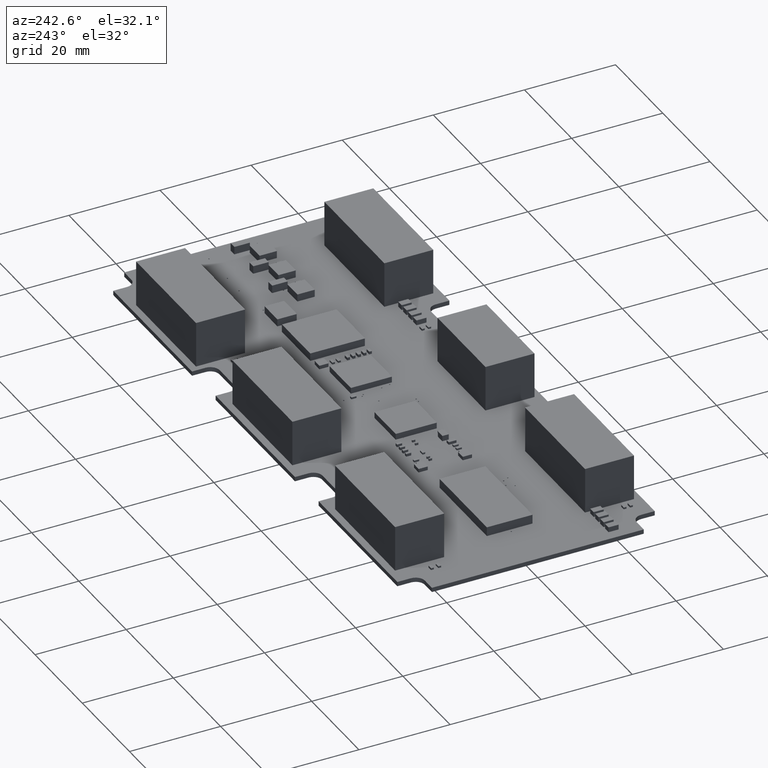
[diagram: clean part render]
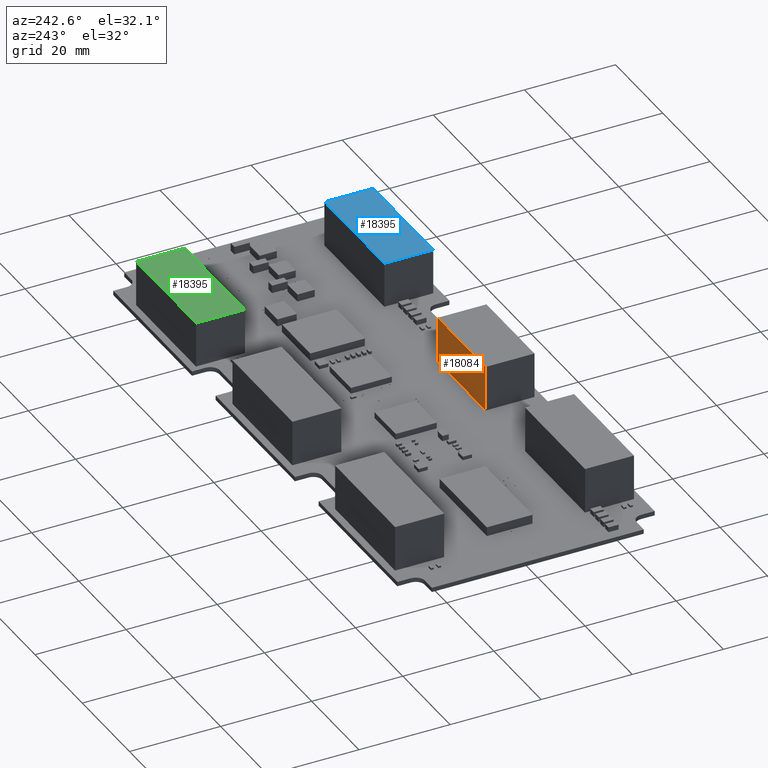
[diagram: same view with three faces highlighted in distinct colors, each labeled with its STEP entity id]
A machine part, auxiliary view with three faces highlighted in distinct colors.
Their STEP definitions:

[orange] entity #18084 — the highlighted planar face has unit normal (0, 1, 0).
#18059 = VERTEX_POINT('',#18060);
#18060 = CARTESIAN_POINT('',(-10.159492,5.36949142,10.00000032));
#18066 = EDGE_CURVE('',#18067,#18059,#18069,.T.);
#18067 = VERTEX_POINT('',#18068);
#18068 = CARTESIAN_POINT('',(-10.159492,5.36949142,0.E+000));
#18069 = LINE('',#18070,#18071);
#18070 = CARTESIAN_POINT('',(-10.159492,5.36949142,0.E+000));
#18071 = VECTOR('',#18072,1.);
#18072 = DIRECTION('',(0.E+000,0.E+000,1.));
#18084 = ADVANCED_FACE('',(#18085),#18110,.T.);
#18085 = FACE_BOUND('',#18086,.T.);
#18086 = EDGE_LOOP('',(#18087,#18088,#18096,#18104));
#18087 = ORIENTED_EDGE('',*,*,#18066,.T.);
#18088 = ORIENTED_EDGE('',*,*,#18089,.T.);
#18089 = EDGE_CURVE('',#18059,#18090,#18092,.T.);
#18090 = VERTEX_POINT('',#18091);
#18091 = CARTESIAN_POINT('',(10.159492,5.36949142,10.00000032));
#18092 = LINE('',#18093,#18094);
#18093 = CARTESIAN_POINT('',(-10.159492,5.36949142,10.00000032));
#18094 = VECTOR('',#18095,1.);
#18095 = DIRECTION('',(1.,0.E+000,0.E+000));
#18096 = ORIENTED_EDGE('',*,*,#18097,.F.);
#18097 = EDGE_CURVE('',#18098,#18090,#18100,.T.);
#18098 = VERTEX_POINT('',#18099);
#18099 = CARTESIAN_POINT('',(10.159492,5.36949142,0.E+000));
#18100 = LINE('',#18101,#18102);
#18101 = CARTESIAN_POINT('',(10.159492,5.36949142,0.E+000));
#18102 = VECTOR('',#18103,1.);
#18103 = DIRECTION('',(0.E+000,0.E+000,1.));
#18104 = ORIENTED_EDGE('',*,*,#18105,.F.);
#18105 = EDGE_CURVE('',#18067,#18098,#18106,.T.);
#18106 = LINE('',#18107,#18108);
#18107 = CARTESIAN_POINT('',(-10.159492,5.36949142,0.E+000));
#18108 = VECTOR('',#18109,1.);
#18109 = DIRECTION('',(1.,0.E+000,0.E+000));
#18110 = PLANE('',#18111);
#18111 = AXIS2_PLACEMENT_3D('',#18112,#18113,#18114);
#18112 = CARTESIAN_POINT('',(-10.159492,5.36949142,0.E+000));
#18113 = DIRECTION('',(0.E+000,1.,0.E+000));
#18114 = DIRECTION('',(1.,0.E+000,0.E+000));

[blue] entity #18395 — the highlighted planar face has unit normal (0, 0, 1).
#18266 = VERTEX_POINT('',#18267);
#18267 = CARTESIAN_POINT('',(-12.699492,-5.36949142,10.00000032));
#18273 = EDGE_CURVE('',#18266,#18274,#18276,.T.);
#18274 = VERTEX_POINT('',#18275);
#18275 = CARTESIAN_POINT('',(-12.699492,5.36949142,10.00000032));
#18276 = LINE('',#18277,#18278);
#18277 = CARTESIAN_POINT('',(-12.699492,-5.36949142,10.00000032));
#18278 = VECTOR('',#18279,1.);
#18279 = DIRECTION('',(0.E+000,1.,0.E+000));
#18304 = EDGE_CURVE('',#18274,#18305,#18307,.T.);
#18305 = VERTEX_POINT('',#18306);
#18306 = CARTESIAN_POINT('',(12.699492,5.36949142,10.00000032));
#18307 = LINE('',#18308,#18309);
#18308 = CARTESIAN_POINT('',(-12.699492,5.36949142,10.00000032));
#18309 = VECTOR('',#18310,1.);
#18310 = DIRECTION('',(1.,0.E+000,0.E+000));
#18335 = EDGE_CURVE('',#18305,#18336,#18338,.T.);
#18336 = VERTEX_POINT('',#18337);
#18337 = CARTESIAN_POINT('',(12.699492,-5.36949142,10.00000032));
#18338 = LINE('',#18339,#18340);
#18339 = CARTESIAN_POINT('',(12.699492,5.36949142,10.00000032));
#18340 = VECTOR('',#18341,1.);
#18341 = DIRECTION('',(0.E+000,-1.,0.E+000));
#18366 = EDGE_CURVE('',#18336,#18266,#18367,.T.);
#18367 = LINE('',#18368,#18369);
#18368 = CARTESIAN_POINT('',(12.699492,-5.36949142,10.00000032));
#18369 = VECTOR('',#18370,1.);
#18370 = DIRECTION('',(-1.,0.E+000,0.E+000));
#18395 = ADVANCED_FACE('',(#18396),#18402,.T.);
#18396 = FACE_BOUND('',#18397,.F.);
#18397 = EDGE_LOOP('',(#18398,#18399,#18400,#18401));
#18398 = ORIENTED_EDGE('',*,*,#18273,.T.);
#18399 = ORIENTED_EDGE('',*,*,#18304,.T.);
#18400 = ORIENTED_EDGE('',*,*,#18335,.T.);
#18401 = ORIENTED_EDGE('',*,*,#18366,.T.);
#18402 = PLANE('',#18403);
#18403 = AXIS2_PLACEMENT_3D('',#18404,#18405,#18406);
#18404 = CARTESIAN_POINT('',(-12.699492,-5.36949142,10.00000032));
#18405 = DIRECTION('',(0.E+000,0.E+000,1.));
#18406 = DIRECTION('',(1.,0.E+000,-0.E+000));

[green] entity #18395 — the highlighted planar face has unit normal (0, 0, 1).
#18266 = VERTEX_POINT('',#18267);
#18267 = CARTESIAN_POINT('',(-12.699492,-5.36949142,10.00000032));
#18273 = EDGE_CURVE('',#18266,#18274,#18276,.T.);
#18274 = VERTEX_POINT('',#18275);
#18275 = CARTESIAN_POINT('',(-12.699492,5.36949142,10.00000032));
#18276 = LINE('',#18277,#18278);
#18277 = CARTESIAN_POINT('',(-12.699492,-5.36949142,10.00000032));
#18278 = VECTOR('',#18279,1.);
#18279 = DIRECTION('',(0.E+000,1.,0.E+000));
#18304 = EDGE_CURVE('',#18274,#18305,#18307,.T.);
#18305 = VERTEX_POINT('',#18306);
#18306 = CARTESIAN_POINT('',(12.699492,5.36949142,10.00000032));
#18307 = LINE('',#18308,#18309);
#18308 = CARTESIAN_POINT('',(-12.699492,5.36949142,10.00000032));
#18309 = VECTOR('',#18310,1.);
#18310 = DIRECTION('',(1.,0.E+000,0.E+000));
#18335 = EDGE_CURVE('',#18305,#18336,#18338,.T.);
#18336 = VERTEX_POINT('',#18337);
#18337 = CARTESIAN_POINT('',(12.699492,-5.36949142,10.00000032));
#18338 = LINE('',#18339,#18340);
#18339 = CARTESIAN_POINT('',(12.699492,5.36949142,10.00000032));
#18340 = VECTOR('',#18341,1.);
#18341 = DIRECTION('',(0.E+000,-1.,0.E+000));
#18366 = EDGE_CURVE('',#18336,#18266,#18367,.T.);
#18367 = LINE('',#18368,#18369);
#18368 = CARTESIAN_POINT('',(12.699492,-5.36949142,10.00000032));
#18369 = VECTOR('',#18370,1.);
#18370 = DIRECTION('',(-1.,0.E+000,0.E+000));
#18395 = ADVANCED_FACE('',(#18396),#18402,.T.);
#18396 = FACE_BOUND('',#18397,.F.);
#18397 = EDGE_LOOP('',(#18398,#18399,#18400,#18401));
#18398 = ORIENTED_EDGE('',*,*,#18273,.T.);
#18399 = ORIENTED_EDGE('',*,*,#18304,.T.);
#18400 = ORIENTED_EDGE('',*,*,#18335,.T.);
#18401 = ORIENTED_EDGE('',*,*,#18366,.T.);
#18402 = PLANE('',#18403);
#18403 = AXIS2_PLACEMENT_3D('',#18404,#18405,#18406);
#18404 = CARTESIAN_POINT('',(-12.699492,-5.36949142,10.00000032));
#18405 = DIRECTION('',(0.E+000,0.E+000,1.));
#18406 = DIRECTION('',(1.,0.E+000,-0.E+000));